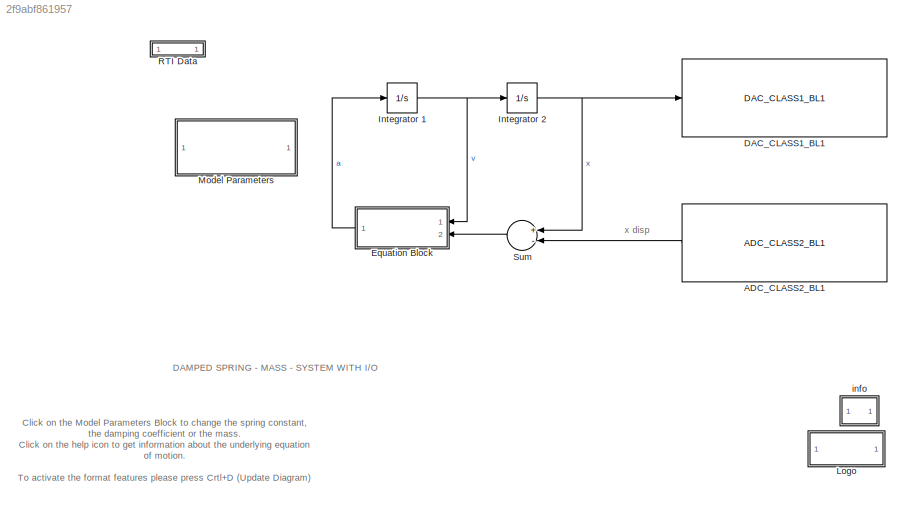
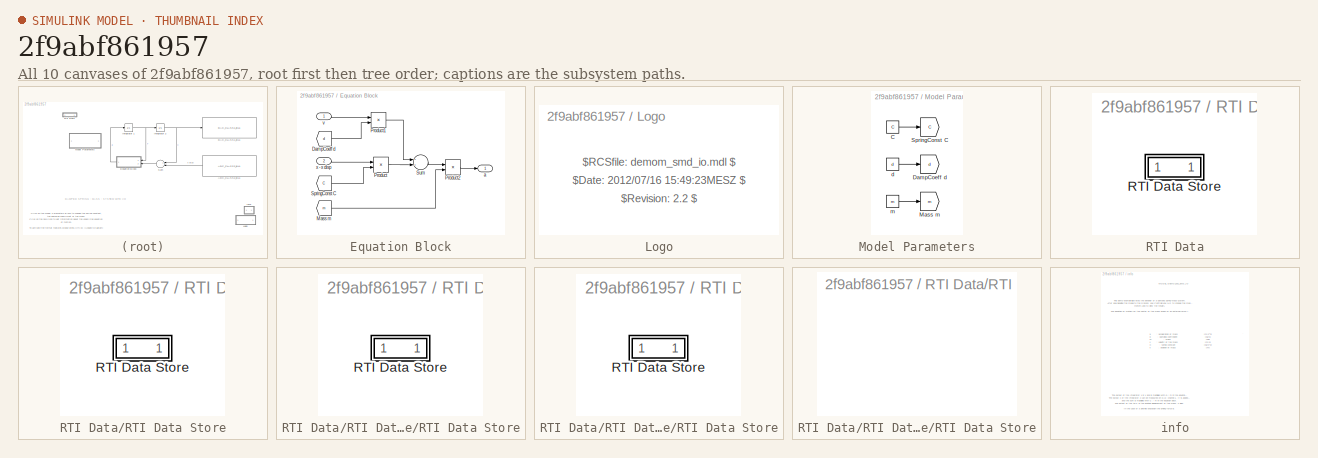
[diagram: thumbnail index - all 10 canvases of the model, root first then tree order]
MODEL slx_2f9abf861957
KIND model
CONFIG AbsTol = auto
CONFIG FixedStep = 0.0001
CONFIG MaxStep = auto
CONFIG MinStep = auto
CONFIG PostLoadFcn = , if any(exist('dsrtsu_mdlpostloadfcn', 'file') == [2, 3, 6]), try dsrtsu_mdlpostloadfcn('Execute', bdroot); catch fprintf('Error in PostLoadFcn (dsrtsu_mdlpostloadfcn) for model "%s":\n %s\n', bdroot, lasterr); end, end, \n
CONFIG RelTol = 1e-3
CONFIG SampleTimeConstraint = Unconstrained
CONFIG Solver = ode1
CONFIG SolverMode = SingleTasking
CONFIG SolverName = ode1
CONFIG StartTime = 0.0
CONFIG StopTime = Inf
BLOCK [Reference] ADC_CLASS2_BL1  REF=rti1202lib_adc_class2/ADC_CLASS2_BL1
  Ports = [0, 1]
  SourceBlock = rti1202lib_adc_class2/ADC_CLASS2_BL1
  SourceType = RTI
BLOCK [Reference] DAC_CLASS1_BL1  REF=rti1202lib_dac_class1/DAC_CLASS1_BL1
  Ports = [1]
  SourceBlock = rti1202lib_dac_class1/DAC_CLASS1_BL1
  SourceType = RTI
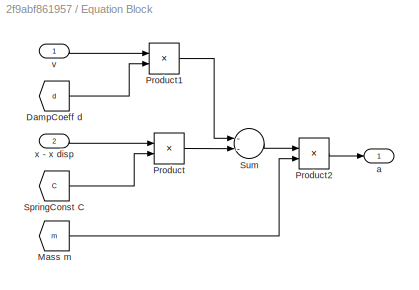
BLOCK [SubSystem] Equation Block
  Ports = [2, 1]
  RequestExecContextInheritance = off
  Variant = off
BLOCK [From] Equation Block/DampCoeff d
  GotoTag = d
  TagVisibility = global
BLOCK [From] Equation Block/Mass m
  GotoTag = m
  TagVisibility = global
BLOCK [Product] Equation Block/Product
  Ports = [2, 1]
  RndMeth = Floor
BLOCK [Product] Equation Block/Product1
  Ports = [2, 1]
  RndMeth = Floor
BLOCK [Product] Equation Block/Product2
  Inputs = */
  Ports = [2, 1]
  RndMeth = Floor
BLOCK [From] Equation Block/SpringConst C
  GotoTag = C
  TagVisibility = global
BLOCK [Sum] Equation Block/Sum
  Inputs = --
  Ports = [2, 1]
BLOCK [Outport] Equation Block/a
  IconDisplay = Port number
BLOCK [Inport] Equation Block/v
  IconDisplay = Port number
BLOCK [Inport] Equation Block/x - x disp
  IconDisplay = Port number
  Port = 2
BLOCK [Integrator] Integrator 1
  Ports = [1, 1]
BLOCK [Integrator] Integrator 2
  Ports = [1, 1]
BLOCK [SubSystem] Logo
  OpenFcn = ;
  Ports = []
  RequestExecContextInheritance = off
  Variant = off
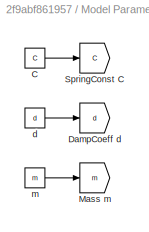
BLOCK [SubSystem] Model Parameters
  Ports = []
  RequestExecContextInheritance = off
  Variant = off
BLOCK [Constant] Model Parameters/C
  Value = C
BLOCK [Goto] Model Parameters/DampCoeff d
  GotoTag = d
  TagVisibility = global
BLOCK [Goto] Model Parameters/Mass m
  GotoTag = m
  TagVisibility = global
BLOCK [Goto] Model Parameters/SpringConst C
  GotoTag = C
  TagVisibility = global
BLOCK [Constant] Model Parameters/d
  Value = d
BLOCK [Constant] Model Parameters/m
  Value = m
BLOCK [SubSystem] RTI Data
  CopyFcn = if exist('rtidc'), try,  rtidc('DataHostBlockClbCopy', gcbh); catch, disp(['Warning: ''CopyFcn'' for RTI Data block failed: ' lasterr]); end, end,
  DeleteFcn = if exist('rtidc'), try,  rtidc('DataHostBlockClbDelete', gcbh); catch, disp(['Warning: ''DeleteFcn'' for RTI Data block failed: ' lasterr]); end, end,
  LoadFcn = if exist('rtidc'), try,  rtidc('DataHostBlockClbLoad', gcbh); catch, disp(['Warning: ''LoadFcn'' for RTI Data block failed: ' lasterr]); end, end,
  ModelCloseFcn = if exist('rtidc'), try,  rtidc('DataHostBlockClbModelClose', gcbh); catch, disp(['Warning: ''ModelCloseFcn'' for RTI Data block failed: ' lasterr]); end, end,
  NameChangeFcn = if exist('rtidc'), try,  rtidc('DataHostBlockClbNameChange', gcbh); catch, disp(['Warning: ''NameChangeFcn'' for RTI Data block failed: ' lasterr]); end, end,
  Ports = []
  PostSaveFcn = if exist('rtidc'), try,  rtidc('DataHostBlockClbPostSave', gcbh); catch, disp(['Warning: ''PostSaveFcn'' for RTI Data block failed: ' lasterr]); end, end,
  PreSaveFcn = if exist('rtidc'), try,  rtidc('DataHostBlockClbPreSave', gcbh); catch, disp(['Warning: ''PreSaveFcn'' for RTI Data block failed: ' lasterr]); end, end,
  RequestExecContextInheritance = off
  Tag = struct('RTIDataServer',struct('RTIDataServerVs','2','RTIModelDescription','struct(''main'',''demo1202_smd_io'',''sub'','''',''isMp'',0)'))
  Variant = off
BLOCK [SubSystem] RTI Data/RTI Data Store
  Ports = []
  RequestExecContextInheritance = off
  Tag = struct('private',struct('version',struct('dsVer',uint32(2),'dsVerCreation',uint32(2),'RTI',struct('ver','3.6.0b5','type','RTI1003')),'access',struct('type','Model','isPerm',1,'created',['22-Sep-2000 15:35:44'],'modified',['03-Feb-2017 15:09:04'],'location','')),'public',struct('main',struct('data',[]),'sub',struct('name',{{'demo1202_smd_io'}},'data',{{struct('TH',struct('thTaskInfo',struct('taskTy...<+900ch>
  Variant = off
BLOCK [SubSystem] RTI Data/RTI Data Store/RTI Data Store
  Ports = []
  RequestExecContextInheritance = off
  Variant = off
BLOCK [SubSystem] RTI Data/RTI Data Store/RTI Data Store/RTI Data Store
  Ports = []
  RequestExecContextInheritance = off
  Variant = off
BLOCK [SubSystem] RTI Data/RTI Data Store/RTI Data Store/RTI Data Store/RTI Data Store
  Ports = []
  RequestExecContextInheritance = off
  Variant = off
BLOCK [Sum] Sum
  Inputs = +-
  Ports = [2, 1]
BLOCK [SubSystem] info
  Ports = []
  RequestExecContextInheritance = off
  ShowPortLabels = none
  Variant = off
ANNOTATION (root): Click on the Model Parameters Block to change the spring constant, the damping coefficient or the mass. Click on the help icon to get information about the underlying equation of motion. To activate the format features please press Crtl+D (Update Diagram)
ANNOTATION (root): DAMPED SPRING - MASS - SYSTEM WITH I/O
ANNOTATION (root): x disp
ANNOTATION Logo: $Date: 2012/07/16 15:49:23MESZ $
ANNOTATION Logo: $RCSfile: demom_smd_io.mdl $
ANNOTATION Logo: $Revision: 2.2 $
ANNOTATION info: .
ANNOTATION info: : acceleration of mass : damping coeffecient : mass : velocity of the mass : spring constant : position of mass : excitation : frequency : time : amplitude of excitation
ANNOTATION info: MODEL DEMO1202_SMD_IO
ANNOTATION info: The output of the Integrator 1 is v and is multiplied with d / m in the equation block. The output x of the Integrator 2 can be measured on DAC channel 1. It is added to x disp, and the sum is multiplied with C / m in the equation block. The output of the ADC is the exciting displacement of the mass: x disp. In the case of a sine-like excitation the driving force is: F = x disp * C x disp = u * co...<+575ch>
ANNOTATION info: This demo example illustrates the behavior of a damped Spring-Mass-System. After downloading the model to the DS1202, use ControlDesk NG to change the model para- meters and to view the results. The equation of motion for the center of the mass driven by an external force is: a = - (d / m) * v - (C / m)*( x - x disp )
ANNOTATION info: [m/s^2] [kg/s] [kg] [m/s] [kg/s^2] [m] [m] [Hz] [s] [m]
ANNOTATION info: a d m v C x x disp f t u
LINE ADC_CLASS2_BL1:1 -> Sum:2
LINE Equation Block/DampCoeff d:1 -> Equation Block/Product1:2
LINE Equation Block/Mass m:1 -> Equation Block/Product2:2
LINE Equation Block/Product1:1 -> Equation Block/Sum:1
LINE Equation Block/Product2:1 -> Equation Block/a:1
LINE Equation Block/Product:1 -> Equation Block/Sum:2
LINE Equation Block/SpringConst C:1 -> Equation Block/Product:2
LINE Equation Block/Sum:1 -> Equation Block/Product2:1
LINE Equation Block/v:1 -> Equation Block/Product1:1
LINE Equation Block/x - x disp:1 -> Equation Block/Product:1
LINE Equation Block:1 -> Integrator 1:1
NET Integrator 1:1 -> Equation Block:1, Integrator 2:1
NET Integrator 2:1 -> DAC_CLASS1_BL1:1, Sum:1
LINE Model Parameters/C:1 -> Model Parameters/SpringConst C:1
LINE Model Parameters/d:1 -> Model Parameters/DampCoeff d:1
LINE Model Parameters/m:1 -> Model Parameters/Mass m:1
LINE Sum:1 -> Equation Block:2
note: NET lines group one-source signal fan-out (src -> all destinations, sorted); 1:1 wires keep LINE
